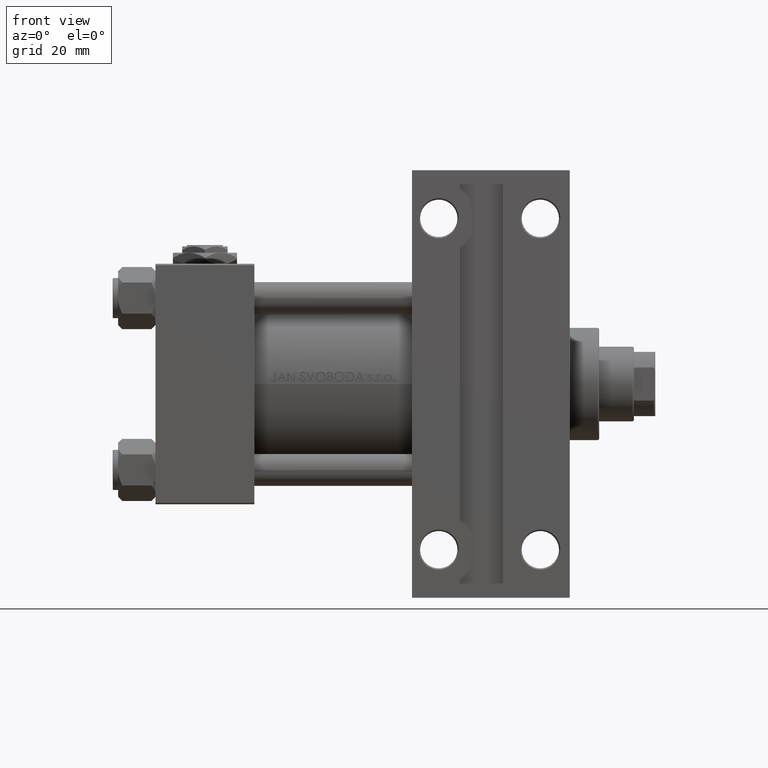
[diagram: clean part render]
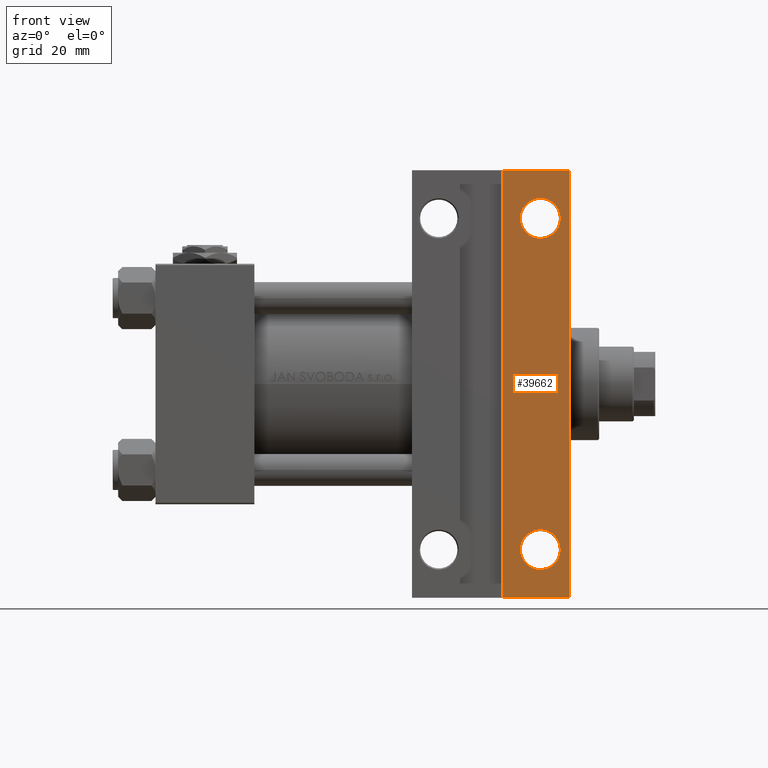
[diagram: same view with one face highlighted and labeled with its STEP entity id]
A machine part, front view. The second image highlights one B-rep face of the part: STEP entity #39662.
In plain terms, the highlighted planar face has unit normal (0, -1, 0).
Its self-contained STEP definition (entity closure, byte-faithful):
#732 = VERTEX_POINT ( 'NONE', #29356 ) ;
#1596 = VERTEX_POINT ( 'NONE', #47058 ) ;
#2478 = ORIENTED_EDGE ( 'NONE', *, *, #14738, .T. ) ;
#2918 = CARTESIAN_POINT ( 'NONE',  ( 129.9999999999999716, -79.99999999999997158, -45.00000000000000000 ) ) ;
#4127 = PLANE ( 'NONE',  #39348 ) ;
#4344 = CARTESIAN_POINT ( 'NONE',  ( 95.99999999999998579, -79.99999999999998579, -45.00000000000000000 ) ) ;
#5405 = EDGE_CURVE ( 'NONE', #732, #31850, #10686, .T. ) ;
#6176 = LINE ( 'NONE', #29282, #37426 ) ;
#6221 = EDGE_CURVE ( 'NONE', #38802, #42669, #48400, .T. ) ;
#8082 = EDGE_CURVE ( 'NONE', #18846, #1596, #23913, .T. ) ;
#8675 = ORIENTED_EDGE ( 'NONE', *, *, #8082, .T. ) ;
#9767 = CARTESIAN_POINT ( 'NONE',  ( 151.4994999999999550, 62.00000000000000000, -45.00000000000000000 ) ) ;
#9779 = CARTESIAN_POINT ( 'NONE',  ( 151.4994999999999550, -62.00000000000000000, -45.00000000000000000 ) ) ;
#10543 = ORIENTED_EDGE ( 'NONE', *, *, #31257, .T. ) ;
#10686 = LINE ( 'NONE', #13971, #41460 ) ;
#11253 = CIRCLE ( 'NONE', #13670, 7.499499999999992284 ) ;
#11510 = EDGE_LOOP ( 'NONE', ( #10543, #8675 ) ) ;
#11664 = FACE_BOUND ( 'NONE', #34188, .T. ) ;
#12257 = CARTESIAN_POINT ( 'NONE',  ( 155.0000000000000000, 45.00000000000001421, -45.00000000000000000 ) ) ;
#12965 = CIRCLE ( 'NONE', #47496, 7.499499999999992284 ) ;
#13670 = AXIS2_PLACEMENT_3D ( 'NONE', #22064, #14769, #30312 ) ;
#13971 = CARTESIAN_POINT ( 'NONE',  ( 129.9999999999999716, -79.99999999999997158, -45.00000000000000000 ) ) ;
#14738 = EDGE_CURVE ( 'NONE', #43755, #42681, #11253, .T. ) ;
#14769 = DIRECTION ( 'NONE',  ( -0.000000000000000000, -0.000000000000000000, 1.000000000000000000 ) ) ;
#14989 = ORIENTED_EDGE ( 'NONE', *, *, #41949, .T. ) ;
#15288 = DIRECTION ( 'NONE',  ( -0.000000000000000000, -0.000000000000000000, 1.000000000000000000 ) ) ;
#15563 = ORIENTED_EDGE ( 'NONE', *, *, #23115, .T. ) ;
#15694 = CARTESIAN_POINT ( 'NONE',  ( 155.0000000000000000, 45.00000000000001421, -45.00000000000000000 ) ) ;
#18846 = VERTEX_POINT ( 'NONE', #9767 ) ;
#21504 = DIRECTION ( 'NONE',  ( 1.000000000000000000, 2.352167425053297897E-16, 0.000000000000000000 ) ) ;
#22064 = CARTESIAN_POINT ( 'NONE',  ( 143.9999999999999716, -62.00000000000000000, -45.00000000000000000 ) ) ;
#22396 = EDGE_LOOP ( 'NONE', ( #29190, #32026, #49631, #15563 ) ) ;
#22809 = CARTESIAN_POINT ( 'NONE',  ( 143.9999999999999716, -62.00000000000000000, -45.00000000000000000 ) ) ;
#23115 = EDGE_CURVE ( 'NONE', #42669, #31850, #34000, .T. ) ;
#23913 = CIRCLE ( 'NONE', #30318, 7.499499999999992284 ) ;
#24370 = CARTESIAN_POINT ( 'NONE',  ( 136.5004999999999598, -62.00000000000000000, -45.00000000000000000 ) ) ;
#26708 = DIRECTION ( 'NONE',  ( -1.000000000000000000, 7.056502275159895171E-16, -0.000000000000000000 ) ) ;
#26825 = DIRECTION ( 'NONE',  ( -1.000000000000000000, 0.000000000000000000, 0.000000000000000000 ) ) ;
#27563 = EDGE_CURVE ( 'NONE', #732, #38802, #6176, .T. ) ;
#29190 = ORIENTED_EDGE ( 'NONE', *, *, #5405, .F. ) ;
#29282 = CARTESIAN_POINT ( 'NONE',  ( 96.00000000000000000, 79.99999999999998579, -45.00000000000000000 ) ) ;
#29356 = CARTESIAN_POINT ( 'NONE',  ( 129.9999999999999716, 79.99999999999998579, -45.00000000000000000 ) ) ;
#30312 = DIRECTION ( 'NONE',  ( -1.000000000000000000, 0.000000000000000000, 0.000000000000000000 ) ) ;
#30318 = AXIS2_PLACEMENT_3D ( 'NONE', #39985, #35216, #47057 ) ;
#30745 = FACE_OUTER_BOUND ( 'NONE', #22396, .T. ) ;
#30991 = DIRECTION ( 'NONE',  ( 0.000000000000000000, 0.000000000000000000, -1.000000000000000000 ) ) ;
#31257 = EDGE_CURVE ( 'NONE', #1596, #18846, #34371, .T. ) ;
#31638 = CARTESIAN_POINT ( 'NONE',  ( 154.9999999999999716, -80.00000000000002842, -45.00000000000000000 ) ) ;
#31850 = VERTEX_POINT ( 'NONE', #2918 ) ;
#32026 = ORIENTED_EDGE ( 'NONE', *, *, #27563, .T. ) ;
#33459 = VECTOR ( 'NONE', #36547, 1000.000000000000000 ) ;
#33543 = DIRECTION ( 'NONE',  ( -0.000000000000000000, -1.000000000000000000, -0.000000000000000000 ) ) ;
#34000 = LINE ( 'NONE', #4344, #38913 ) ;
#34188 = EDGE_LOOP ( 'NONE', ( #14989, #2478 ) ) ;
#34371 = CIRCLE ( 'NONE', #44006, 7.499499999999992284 ) ;
#35216 = DIRECTION ( 'NONE',  ( -0.000000000000000000, -0.000000000000000000, 1.000000000000000000 ) ) ;
#36547 = DIRECTION ( 'NONE',  ( 0.000000000000000000, -1.000000000000000000, 0.000000000000000000 ) ) ;
#37426 = VECTOR ( 'NONE', #21504, 1000.000000000000000 ) ;
#38534 = FACE_BOUND ( 'NONE', #11510, .T. ) ;
#38802 = VERTEX_POINT ( 'NONE', #48077 ) ;
#38913 = VECTOR ( 'NONE', #26708, 1000.000000000000000 ) ;
#39348 = AXIS2_PLACEMENT_3D ( 'NONE', #15694, #30991, #46352 ) ;
#39662 = ADVANCED_FACE ( 'NONE', ( #30745, #11664, #38534 ), #4127, .T. ) ;
#39985 = CARTESIAN_POINT ( 'NONE',  ( 143.9999999999999716, 62.00000000000000000, -45.00000000000000000 ) ) ;
#41460 = VECTOR ( 'NONE', #33543, 1000.000000000000000 ) ;
#41949 = EDGE_CURVE ( 'NONE', #42681, #43755, #12965, .T. ) ;
#42669 = VERTEX_POINT ( 'NONE', #31638 ) ;
#42681 = VERTEX_POINT ( 'NONE', #24370 ) ;
#43755 = VERTEX_POINT ( 'NONE', #9779 ) ;
#44006 = AXIS2_PLACEMENT_3D ( 'NONE', #47994, #48246, #44460 ) ;
#44460 = DIRECTION ( 'NONE',  ( -1.000000000000000000, 0.000000000000000000, 0.000000000000000000 ) ) ;
#46352 = DIRECTION ( 'NONE',  ( -1.000000000000000000, 0.000000000000000000, -0.000000000000000000 ) ) ;
#47057 = DIRECTION ( 'NONE',  ( -1.000000000000000000, 0.000000000000000000, 0.000000000000000000 ) ) ;
#47058 = CARTESIAN_POINT ( 'NONE',  ( 136.5004999999999598, 62.00000000000000000, -45.00000000000000000 ) ) ;
#47496 = AXIS2_PLACEMENT_3D ( 'NONE', #22809, #15288, #26825 ) ;
#47994 = CARTESIAN_POINT ( 'NONE',  ( 143.9999999999999716, 62.00000000000000000, -45.00000000000000000 ) ) ;
#48077 = CARTESIAN_POINT ( 'NONE',  ( 155.0000000000000000, 80.00000000000000000, -45.00000000000000000 ) ) ;
#48246 = DIRECTION ( 'NONE',  ( -0.000000000000000000, -0.000000000000000000, 1.000000000000000000 ) ) ;
#48400 = LINE ( 'NONE', #12257, #33459 ) ;
#49631 = ORIENTED_EDGE ( 'NONE', *, *, #6221, .T. ) ;